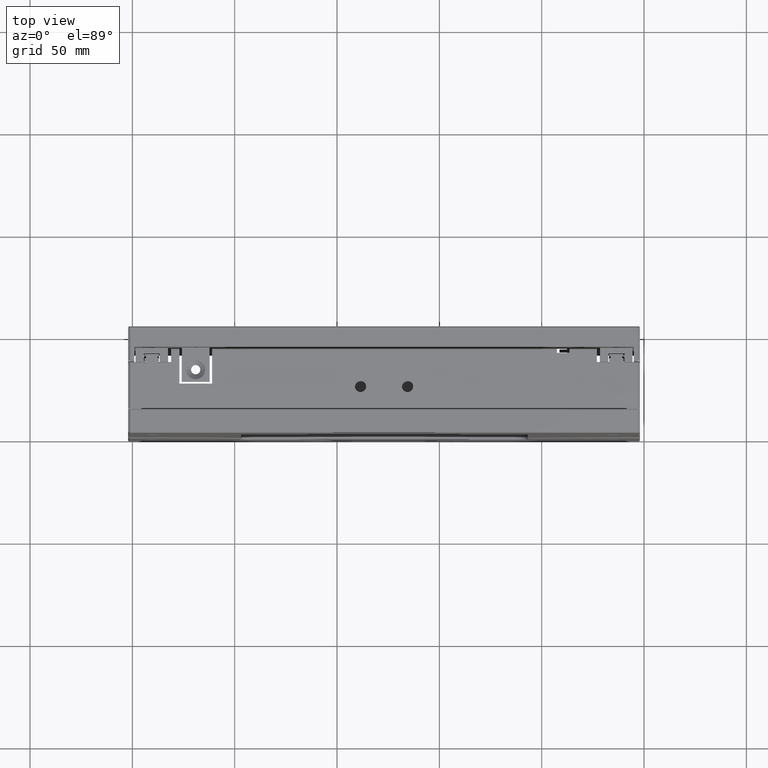
[diagram: clean part render]
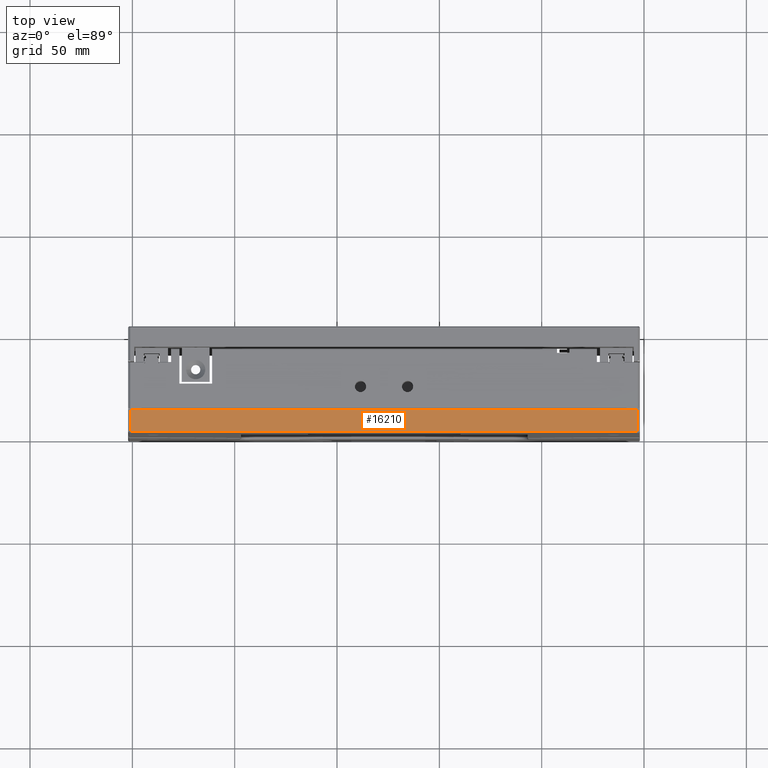
[diagram: same view with one face highlighted and labeled with its STEP entity id]
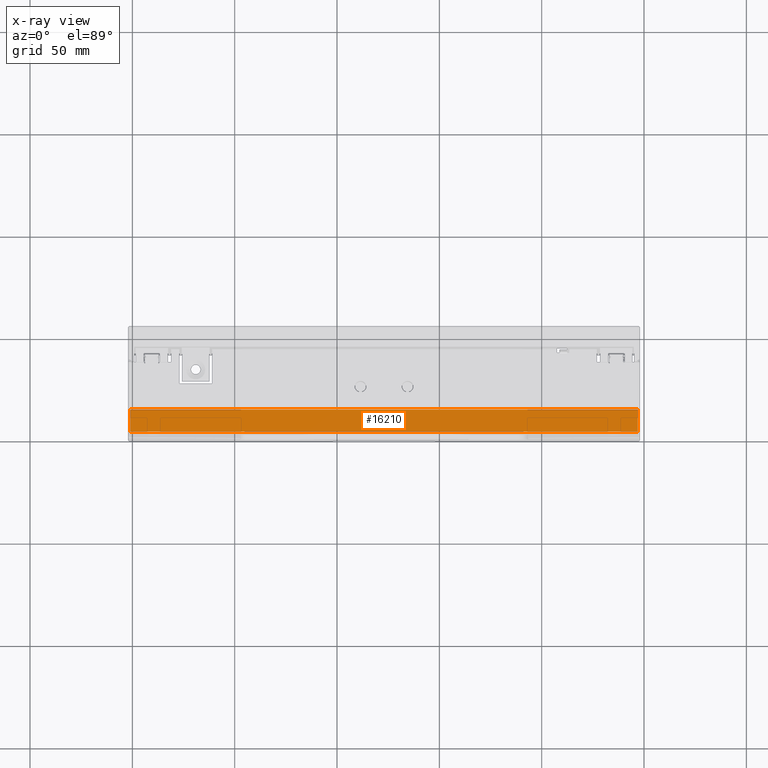
[diagram: x-ray of the same camera — body ghosted, the highlighted face saturated]
A machine part, top view. The second image highlights one B-rep face of the part: STEP entity #16210.
The next image is the same camera in x-ray: the body ghosted, the highlighted face saturated — about 0% of this face is hidden behind the body in this view.
In plain terms, the highlighted planar face has unit normal (0, 0, -1).
Its self-contained STEP definition (entity closure, byte-faithful):
#103 = LINE ( 'NONE', #13522, #5912 ) ;
#402 = CARTESIAN_POINT ( 'NONE',  ( -53.04777213772141000, 11.30000000000000800, 249.9999999999999400 ) ) ;
#668 = VECTOR ( 'NONE', #17078, 1000.000000000000000 ) ;
#2096 = CARTESIAN_POINT ( 'NONE',  ( -301.0477721377213800, 17.99999999999998600, 249.9999999999999400 ) ) ;
#2808 = PLANE ( 'NONE',  #3124 ) ;
#3124 = AXIS2_PLACEMENT_3D ( 'NONE', #6457, #6377, #11923 ) ;
#3481 = CARTESIAN_POINT ( 'NONE',  ( -301.0477721377213800, 11.30000000000000800, 249.9999999999999400 ) ) ;
#4502 = DIRECTION ( 'NONE',  ( 0.0000000000000000000, 1.000000000000000000, 1.224646799147353200E-016 ) ) ;
#5078 = LINE ( 'NONE', #2096, #11903 ) ;
#5770 = CARTESIAN_POINT ( 'NONE',  ( -302.0477721377213800, 11.30000000000000800, 249.9999999999999400 ) ) ;
#5912 = VECTOR ( 'NONE', #4502, 1000.000000000000000 ) ;
#6377 = DIRECTION ( 'NONE',  ( 0.0000000000000000000, 1.224646799147353200E-016, -1.000000000000000000 ) ) ;
#6457 = CARTESIAN_POINT ( 'NONE',  ( -302.0477721377213800, 17.99999999999998600, 249.9999999999999400 ) ) ;
#6712 = VERTEX_POINT ( 'NONE', #15472 ) ;
#6731 = FACE_OUTER_BOUND ( 'NONE', #10518, .T. ) ;
#6944 = EDGE_CURVE ( 'NONE', #13744, #22462, #5078, .T. ) ;
#7051 = LINE ( 'NONE', #5770, #21708 ) ;
#7932 = ORIENTED_EDGE ( 'NONE', *, *, #8226, .T. ) ;
#8226 = EDGE_CURVE ( 'NONE', #6712, #11757, #103, .T. ) ;
#9610 = CARTESIAN_POINT ( 'NONE',  ( -202.0477721377214100, 0.4999999999999310600, 249.9999999999999400 ) ) ;
#10518 = EDGE_LOOP ( 'NONE', ( #7932, #11500, #21372, #16750 ) ) ;
#11500 = ORIENTED_EDGE ( 'NONE', *, *, #15532, .T. ) ;
#11757 = VERTEX_POINT ( 'NONE', #402 ) ;
#11903 = VECTOR ( 'NONE', #22708, 1000.000000000000000 ) ;
#11923 = DIRECTION ( 'NONE',  ( 0.0000000000000000000, 1.000000000000000000, 1.224646799147353200E-016 ) ) ;
#13323 = DIRECTION ( 'NONE',  ( -1.000000000000000000, 0.0000000000000000000, 0.0000000000000000000 ) ) ;
#13522 = CARTESIAN_POINT ( 'NONE',  ( -53.04777213772141000, 17.99999999999998600, 249.9999999999999400 ) ) ;
#13744 = VERTEX_POINT ( 'NONE', #3481 ) ;
#13997 = EDGE_CURVE ( 'NONE', #22462, #6712, #14470, .T. ) ;
#14470 = LINE ( 'NONE', #9610, #668 ) ;
#15472 = CARTESIAN_POINT ( 'NONE',  ( -53.04777213772141000, 0.4999999999999310600, 249.9999999999999400 ) ) ;
#15532 = EDGE_CURVE ( 'NONE', #11757, #13744, #7051, .T. ) ;
#16210 = ADVANCED_FACE ( 'NONE', ( #6731 ), #2808, .F. ) ;
#16750 = ORIENTED_EDGE ( 'NONE', *, *, #13997, .T. ) ;
#17078 = DIRECTION ( 'NONE',  ( 1.000000000000000000, 0.0000000000000000000, 0.0000000000000000000 ) ) ;
#21372 = ORIENTED_EDGE ( 'NONE', *, *, #6944, .T. ) ;
#21708 = VECTOR ( 'NONE', #13323, 1000.000000000000000 ) ;
#22462 = VERTEX_POINT ( 'NONE', #22701 ) ;
#22701 = CARTESIAN_POINT ( 'NONE',  ( -301.0477721377213800, 0.4999999999999310600, 249.9999999999999400 ) ) ;
#22708 = DIRECTION ( 'NONE',  ( 0.0000000000000000000, -1.000000000000000000, -1.224646799147353200E-016 ) ) ;